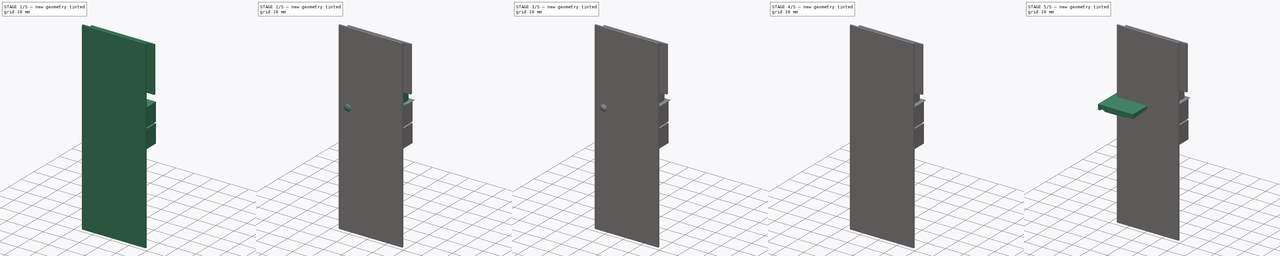
[diagram: build sequence overview — one tinted view per stage of 5, left to right]
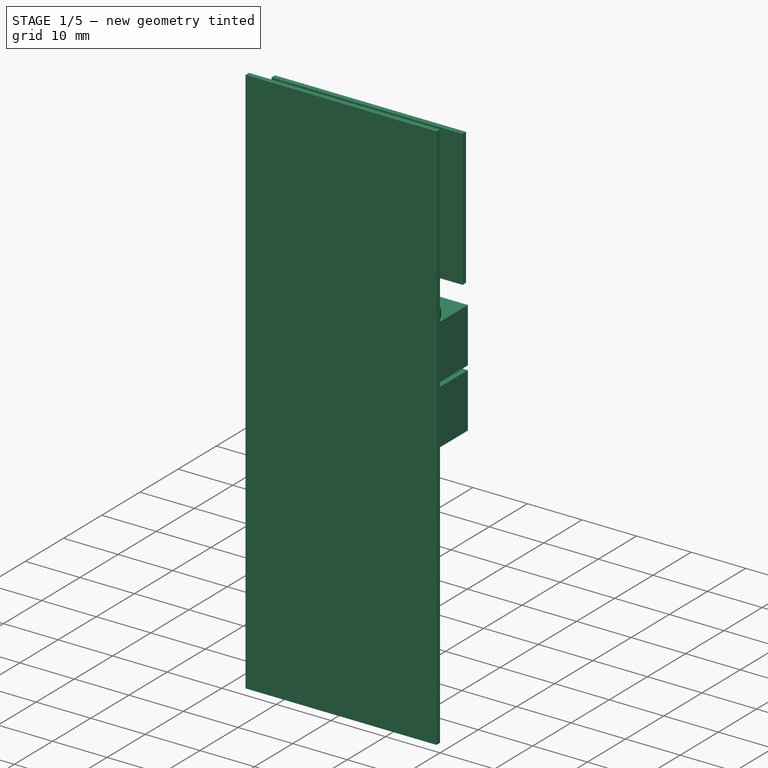
[diagram: stage 1 of 5 — iso view after this stage's code; geometry added in this stage tinted green]
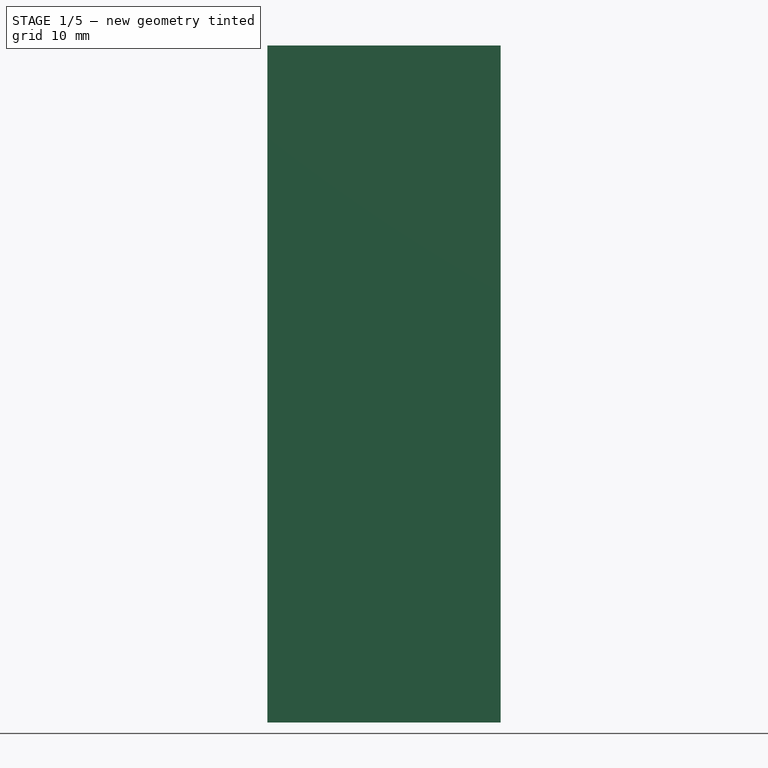
[diagram: stage 1 of 5 — front view after this stage's code; geometry added in this stage tinted green]
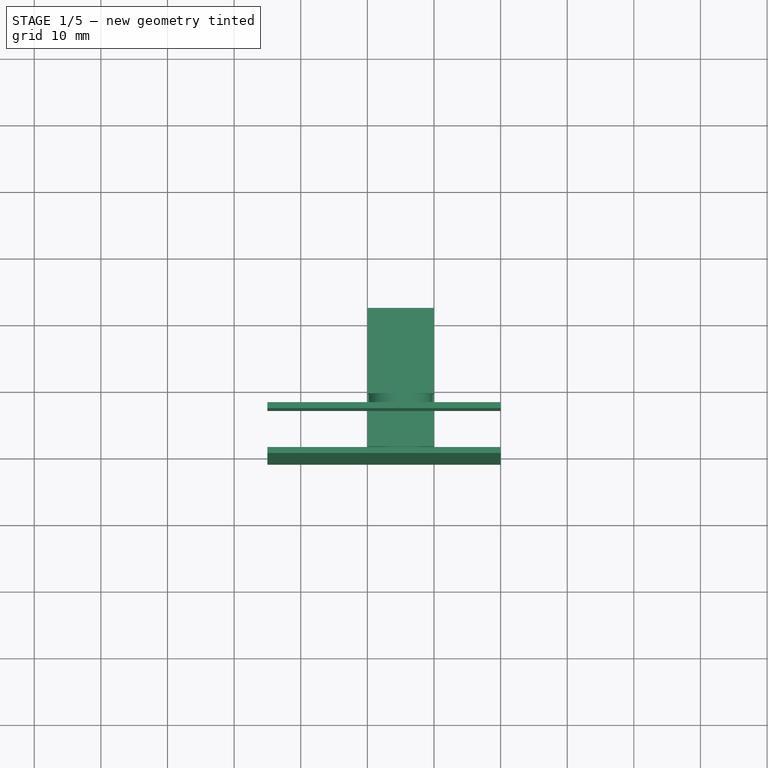
[diagram: stage 1 of 5 — top view after this stage's code; geometry added in this stage tinted green]
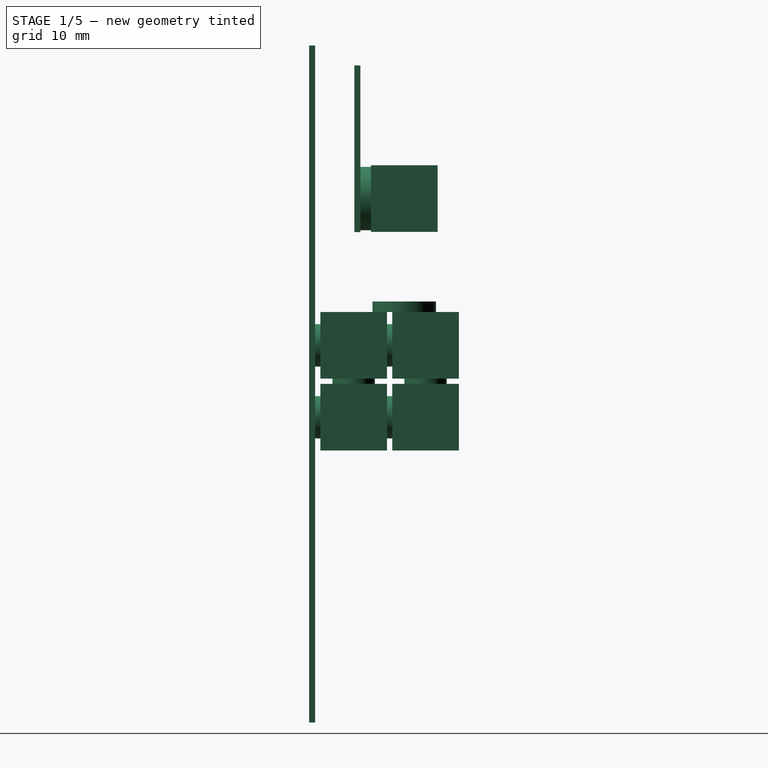
[diagram: stage 1 of 5 — right view after this stage's code; geometry added in this stage tinted green]
FCSTD DOCUMENT  (FreeCAD 1.1R20260223 (Git shallow))
Label: PhaseI
License: All rights reserved
LicenseURL: https://en.wikipedia.org/wiki/All_rights_reserved
objects: Part::Box×66, Part::Cylinder×30, Part::Cut×24, App::DocumentObjectGroup×14, Sketcher::SketchObject×3, Part::Sphere×3, PartDesign::Pocket×2, App::Point×1, PartDesign::Pad×1, PartDesign::Body×1
note: 139 computed .brp shape members not serialized (recipe doc carries the construction recipe); baked Part::Feature solids carry a one-line shape summary decoded from their .brp

FEATURE [Part::Cylinder] Cylinder136  label="KJ_D61SH004"
  Angle = 360
  AttacherType = Attacher::AttachEngine3D
  FirstAngle = 0
  Height = 1.59
  Placement = pos=(15,13.38,0) rot=(0,0,1;0rad)
  Radius = 4.76
  SecondAngle = 0
FEATURE [App::DocumentObjectGroup] Group040  label="Stationary Capacitance Probe (Phase I)"
  Group = -> [Cylinder136,Box298,Box297]
FEATURE [Part::Box] Box299  label="Steel Cube004"
  AttacherType = Attacher::AttachEngine3D
  Height = 10
  Length = 10
  Placement = pos=(10,8.38,22.04) rot=(1,0,0;4.71239rad)
  Width = 10
FEATURE [Part::Cylinder] Cylinder137  label="KJ_D61SH005"
  Angle = 360
  AttacherType = Attacher::AttachEngine3D
  FirstAngle = 0
  Height = 1.59
  Placement = pos=(15,6.79,17.04) rot=(1,0,0;4.71239rad)
  Radius = 4.76
  SecondAngle = 0
FEATURE [App::DocumentObjectGroup] Group041  label="Moving Capacitance Probe (Phase I)"
  Group = -> [Cylinder137,Box299]
FEATURE [Part::Box] Box  label="Nickel Shim"
  AttacherType = Attacher::AttachEngine3D
  Height = 0.15
  Length = 35
  Placement = pos=(-5,5.89,37) rot=(1,0,0;-1.5708rad)
  Width = 25
FEATURE [Part::Box] Box300  label="Nickel Shim001"
  AttacherType = Attacher::AttachEngine3D
  Height = 0.15
  Length = 35
  Placement = pos=(-5,6.04,37) rot=(1,0,0;-1.5708rad)
  Width = 25
FEATURE [Part::Box] Box301  label="Nickel Shim002"
  AttacherType = Attacher::AttachEngine3D
  Height = 0.15
  Length = 35
  Placement = pos=(-5,6.19,37) rot=(1,0,0;-1.5708rad)
  Width = 25
FEATURE [Part::Box] Box302  label="Nickel Shim003"
  AttacherType = Attacher::AttachEngine3D
  Height = 0.15
  Length = 35
  Placement = pos=(-5,6.34,37) rot=(1,0,0;-1.5708rad)
  Width = 25
FEATURE [Part::Box] Box303  label="Nickel Shim004"
  AttacherType = Attacher::AttachEngine3D
  Height = 0.15
  Length = 35
  Placement = pos=(-5,6.49,37) rot=(1,0,0;-1.5708rad)
  Width = 25
FEATURE [Part::Box] Box304  label="Nickel Shim005"
  AttacherType = Attacher::AttachEngine3D
  Height = 0.15
  Length = 35
  Placement = pos=(-5,6.64,37) rot=(1,0,0;-1.5708rad)
  Width = 25
FEATURE [App::DocumentObjectGroup] Group  label="Improvised Slider"
  Group = -> [Box,Box300,Box302,Box303,Box304,Box301]
FEATURE [Part::Cylinder] Cylinder138  label="KJ_D401_021"
  Angle = 360
  AttacherType = Attacher::AttachEngine3D
  FirstAngle = 0
  Height = 0.79
  Placement = pos=(15,0,-5) rot=(0,0.707107,0.707107;3.14159rad)
  Radius = 3.18
  SecondAngle = 0
FEATURE [Part::Box] Box305  label="Iron Cube"
  AttacherType = Attacher::AttachEngine3D
  Height = 10
  Length = 10
  Placement = pos=(10,0.79,0) rot=(1,0,0;4.71239rad)
  Width = 10
FEATURE [Part::Cylinder] Cylinder139  label="KJ_D401_022"
  Angle = 360
  AttacherType = Attacher::AttachEngine3D
  FirstAngle = 0
  Height = 0.79
  Placement = pos=(15,10.79,-5) rot=(0,0.707107,0.707107;3.14159rad)
  Radius = 3.18
  SecondAngle = 0
FEATURE [Part::Box] Box306  label="Iron Cube001"
  AttacherType = Attacher::AttachEngine3D
  Height = 10
  Length = 10
  Placement = pos=(10,11.58,0) rot=(1,0,0;4.71239rad)
  Width = 10
FEATURE [Part::Cylinder] Cylinder140  label="KJ_D401_023"
  Angle = 360
  AttacherType = Attacher::AttachEngine3D
  FirstAngle = 0
  Height = 0.79
  Placement = pos=(15,0,-15.79) rot=(0,0.707107,0.707107;3.14159rad)
  Radius = 3.18
  SecondAngle = 0
FEATURE [Part::Box] Box307  label="Iron Cube002"
  AttacherType = Attacher::AttachEngine3D
  Height = 10
  Length = 10
  Placement = pos=(10,0.79,-10.79) rot=(1,0,0;4.71239rad)
  Width = 10
FEATURE [Part::Cylinder] Cylinder141  label="KJ_D401_024"
  Angle = 360
  AttacherType = Attacher::AttachEngine3D
  FirstAngle = 0
  Height = 0.79
  Placement = pos=(15,10.79,-15.79) rot=(0,0.707107,0.707107;3.14159rad)
  Radius = 3.18
  SecondAngle = 0
FEATURE [Part::Box] Box308  label="Iron Cube003"
  AttacherType = Attacher::AttachEngine3D
  Height = 10
  Length = 10
  Placement = pos=(10,11.58,-10.79) rot=(1,0,0;4.71239rad)
  Width = 10
FEATURE [Part::Cylinder] Cylinder142  label="KJ_D401_025"
  Angle = 360
  AttacherType = Attacher::AttachEngine3D
  FirstAngle = 0
  Height = 0.79
  Placement = pos=(15,5.79,-10.79) rot=(0,0,1;0rad)
  Radius = 3.18
  SecondAngle = 0
FEATURE [Part::Cylinder] Cylinder143  label="KJ_D401_026"
  Angle = 360
  AttacherType = Attacher::AttachEngine3D
  FirstAngle = 0
  Height = 0.79
  Placement = pos=(15,16.58,-10.79) rot=(0,0,1;0rad)
  Radius = 3.18
  SecondAngle = 0
FEATURE [App::DocumentObjectGroup] Group042  label="Improvised STM Base"
  Group = -> [Cylinder138,Box305,Cylinder139,Box306,Cylinder140,Box307,Cylinder141,Box308,Cylinder142,Cylinder143]
FEATURE [Part::Box] Box309  label="Nickel Shim006"
  AttacherType = Attacher::AttachEngine3D
  Height = 0.15
  Length = 35
  Placement = pos=(-5,-0.15,40) rot=(1,0,0;-1.5708rad)
  Width = 101.6
FEATURE [Part::Box] Box310  label="Nickel Shim007"
  AttacherType = Attacher::AttachEngine3D
  Height = 0.15
  Length = 35
  Placement = pos=(-5,-0.3,40) rot=(1,0,0;-1.5708rad)
  Width = 101.6
FEATURE [Part::Box] Box311  label="Nickel Shim008"
  AttacherType = Attacher::AttachEngine3D
  Height = 0.15
  Length = 35
  Placement = pos=(-5,-0.45,40) rot=(1,0,0;-1.5708rad)
  Width = 101.6
FEATURE [Part::Box] Box312  label="Nickel Shim009"
  AttacherType = Attacher::AttachEngine3D
  Height = 0.15
  Length = 35
  Placement = pos=(-5,-0.6,40) rot=(1,0,0;-1.5708rad)
  Width = 101.6
FEATURE [Part::Box] Box313  label="Nickel Shim010"
  AttacherType = Attacher::AttachEngine3D
  Height = 0.15
  Length = 35
  Placement = pos=(-5,-0.75,40) rot=(1,0,0;-1.5708rad)
  Width = 101.6
FEATURE [Part::Box] Box314  label="Nickel Shim011"
  AttacherType = Attacher::AttachEngine3D
  Height = 0.15
  Length = 35
  Placement = pos=(-5,-0.9,40) rot=(1,0,0;-1.5708rad)
  Width = 101.6
FEATURE [App::DocumentObjectGroup] Group043  label="Improvised Underplate"
  Group = -> [Box309,Box310,Box311,Box312,Box313,Box314]
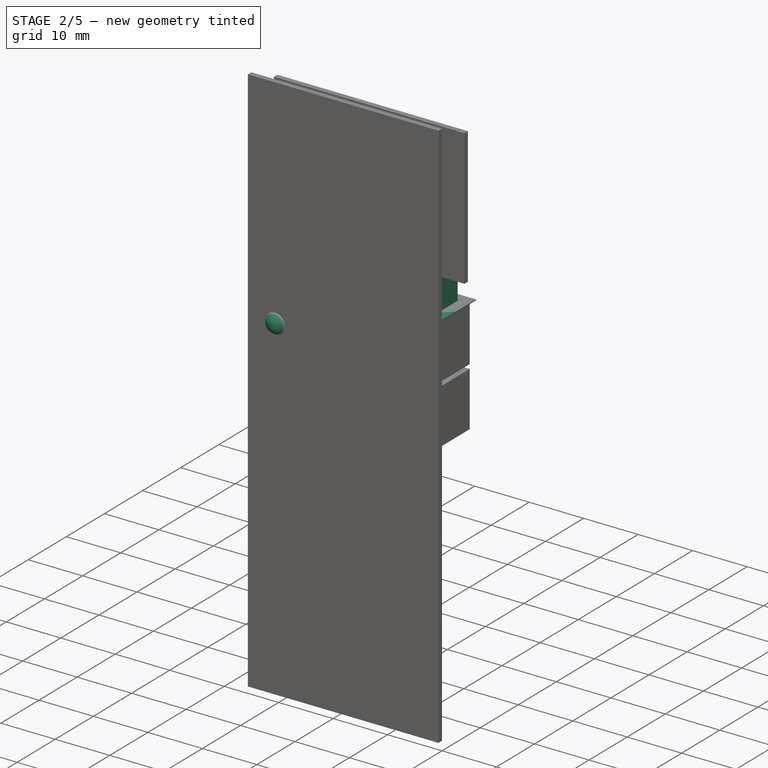
[diagram: stage 2 of 5 — iso view after this stage's code; geometry added in this stage tinted green]
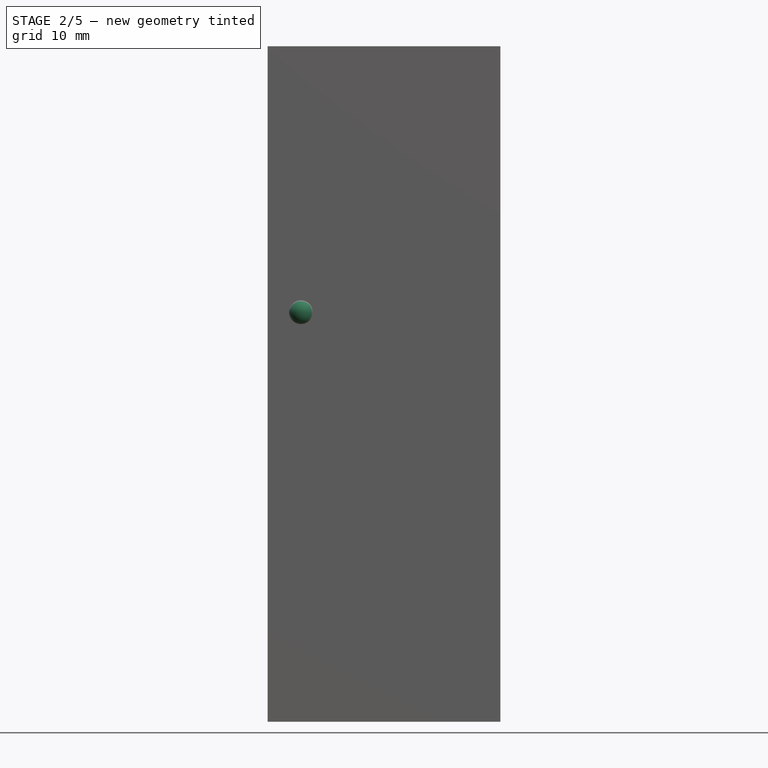
[diagram: stage 2 of 5 — front view after this stage's code; geometry added in this stage tinted green]
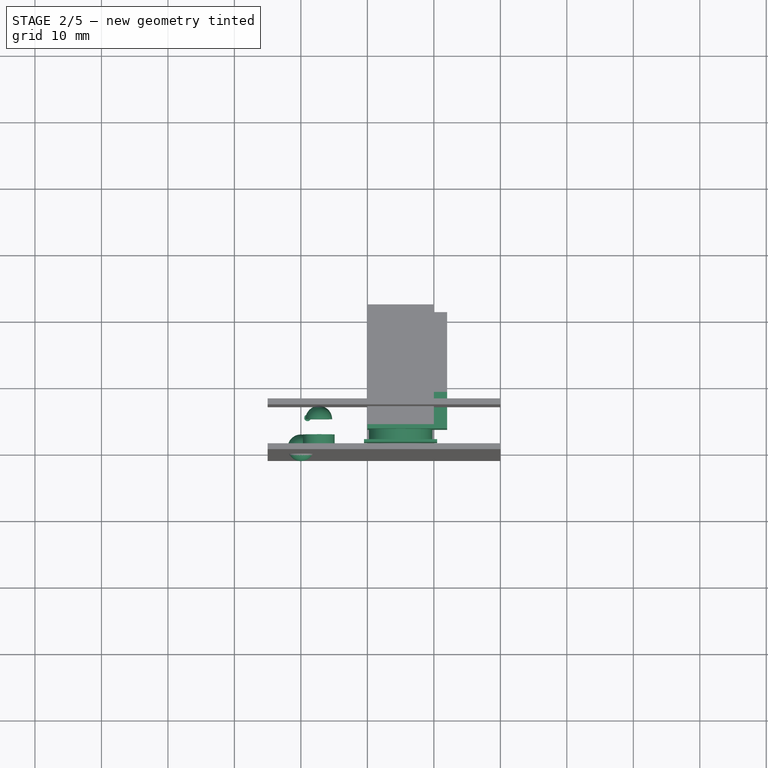
[diagram: stage 2 of 5 — top view after this stage's code; geometry added in this stage tinted green]
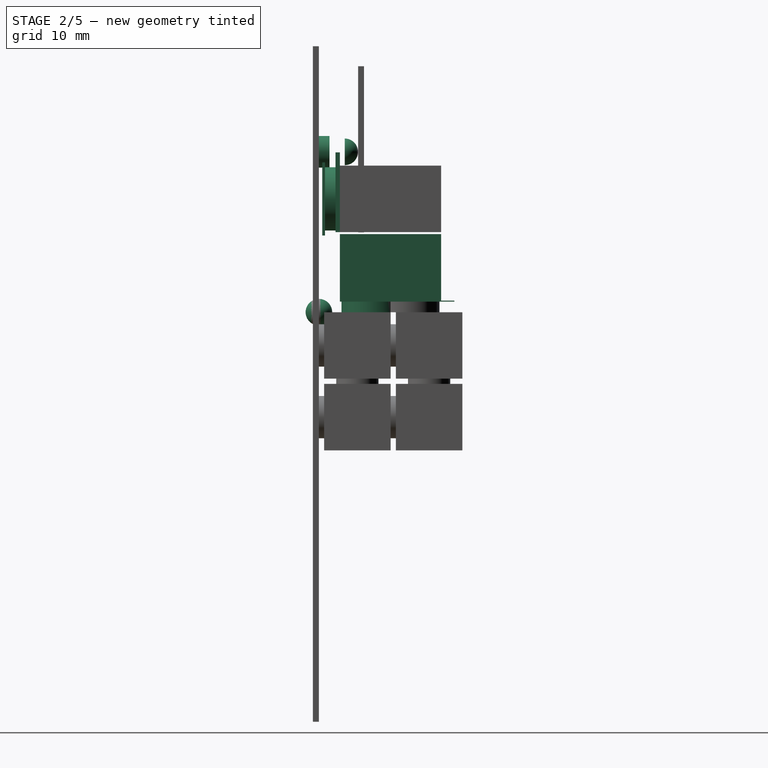
[diagram: stage 2 of 5 — right view after this stage's code; geometry added in this stage tinted green]
FEATURE [Part::Box] Box284  label="Cube024"
  AttacherType = Attacher::AttachEngine3D
  Height = 10
  Length = 10
  Placement = pos=(-5,-5,-10) rot=(0,0,1;0rad)
  Width = 10
FEATURE [Part::Cylinder] Cylinder128  label="KJ_D31SH016"
  Angle = 360
  AttacherType = Attacher::AttachEngine3D
  FirstAngle = 0
  Height = 1.59
  Placement = pos=(2.7,3.6e-15,24.12) rot=(0.198716,-0.693005,-0.693005;3.53391rad)
  Radius = 2.38
  SecondAngle = 0
FEATURE [Part::Cylinder] Cylinder129
  Angle = 360
  AttacherType = Attacher::AttachEngine3D
  FirstAngle = 0
  Height = 0.01
  Placement = pos=(1,4.5,0.49) rot=(0,0,1;0rad)
  Radius = 0.5
  SecondAngle = 0
FEATURE [Part::Cylinder] Cylinder130
  Angle = 360
  AttacherType = Attacher::AttachEngine3D
  FirstAngle = 0
  Height = 0.01
  Placement = pos=(1,4.5,0.49) rot=(0,0,1;0rad)
  Radius = 0.5
  SecondAngle = 0
FEATURE [Part::Cylinder] Cylinder131
  Angle = 360
  AttacherType = Attacher::AttachEngine3D
  FirstAngle = 0
  Height = 0.01
  Placement = pos=(1,4.5,0.49) rot=(0,0,1;0rad)
  Radius = 0.5
  SecondAngle = 0
FEATURE [Part::Cylinder] Cylinder132
  Angle = 360
  AttacherType = Attacher::AttachEngine3D
  FirstAngle = 0
  Height = 0.01
  Placement = pos=(1,4.5,0.49) rot=(0,0,1;0rad)
  Radius = 0.5
  SecondAngle = 0
FEATURE [App::DocumentObjectGroup] Group031  label="Magnet Stack004"
  Group = -> [Box248,Cylinder114,Box249,Cylinder115,Box250,Cylinder116,Box251,Cylinder117]
FEATURE [Part::Sphere] Sphere018
  Angle1 = -90
  Angle2 = 90
  Angle3 = 360
  AttacherType = Attacher::AttachEngine3D
  Radius = 2
FEATURE [App::DocumentObjectGroup] Group032  label="Coarse Piezo Stack, Rotated013"
  Group = -> [Cylinder118,Cut132,Cut131,Cut134,Cut133,Cut135,Cut136,Cut137,Cut138]
FEATURE [Part::Sphere] Sphere019
  Angle1 = -90
  Angle2 = 90
  Angle3 = 360
  AttacherType = Attacher::AttachEngine3D
  Radius = 2
FEATURE [App::DocumentObjectGroup] Group033  label="Coarse Piezo Stack, Rotated014"
  Group = -> [Cylinder123,Cut140,Cut139,Cut142,Cut141,Cut143,Cut144,Cut145,Cut146]
FEATURE [Part::Sphere] Sphere020
  Angle1 = -90
  Angle2 = 90
  Angle3 = 360
  AttacherType = Attacher::AttachEngine3D
  Radius = 2
FEATURE [Part::Cut] Cut154  label="Sapphire Half-Ball Lens020"
  Base = -> Sphere020
  Placement = pos=(2.7,3.89,24.12) rot=(0.198716,-0.693005,-0.693005;3.53391rad)
  Refine = true
  Tool = -> Box284
FEATURE [App::DocumentObjectGroup] Group034  label="Coarse Piezo Stack, Rotated015"
  Group = -> [Cylinder128,Cut148,Cut147,Cut150,Cut149,Cut151,Cut152,Cut153,Cut154]
FEATURE [App::DocumentObjectGroup] Group035  label="Coarse Z Piezo Tripod (Phase I)"
  Group = -> [Group032,Group033,Group034,Group031]
FEATURE [Part::Box] Box287  label="Copper Shim"
  AttacherType = Attacher::AttachEngine3D
  Height = 0.41
  Length = 5.5
  Placement = pos=(12.25,0.5,19.79) rot=(1,0,0;4.71239rad)
  Width = 5.5
FEATURE [Part::Cylinder] Cylinder133  label="KJ_D31SH017"
  Angle = 360
  AttacherType = Attacher::AttachEngine3D
  FirstAngle = 0
  Height = 1.59
  Placement = pos=(15,0.91,17.04) rot=(1,0,0;4.71239rad)
  Radius = 2.38
  SecondAngle = 0
FEATURE [Part::Box] Box288  label="Copper Shim001"
  AttacherType = Attacher::AttachEngine3D
  Height = 0.05
  Length = 12
  Placement = pos=(10,2.5,12.04) rot=(-0.57735,-0.57735,-0.57735;2.0944rad)
  Width = 12
FEATURE [Part::Box] Box289  label="Glass Cover Slip002"
  AttacherType = Attacher::AttachEngine3D
  Height = 0.15
  Length = 12
  Placement = pos=(10,2.55,12.04) rot=(-0.57735,-0.57735,-0.57735;2.0944rad)
  Width = 12
FEATURE [Part::Box] Box290  label="Glass Cover Slip003"
  AttacherType = Attacher::AttachEngine3D
  Height = 0.15
  Length = 12
  Placement = pos=(10,2.7,12.04) rot=(-0.57735,-0.57735,-0.57735;2.0944rad)
  Width = 12
FEATURE [Part::Box] Box291  label="Glass Cover Slip004"
  AttacherType = Attacher::AttachEngine3D
  Height = 0.15
  Length = 12
  Placement = pos=(10,2.85,12.04) rot=(-0.57735,-0.57735,-0.57735;2.0944rad)
  Width = 12
FEATURE [Part::Box] Box292  label="Glass Cover Slip005"
  AttacherType = Attacher::AttachEngine3D
  Height = 0.15
  Length = 12
  Placement = pos=(10,3,12.04) rot=(-0.57735,-0.57735,-0.57735;2.0944rad)
  Width = 12
FEATURE [Part::Box] Box293  label="Steel Cube001"
  AttacherType = Attacher::AttachEngine3D
  Height = 10
  Length = 10
  Placement = pos=(10,3.15,12.04) rot=(-0.57735,-0.57735,-0.57735;2.0944rad)
  Width = 10
FEATURE [App::DocumentObjectGroup] Group036  label="Moving Capacitance Probe (Phase 0.2)"
  Group = -> [Box289,Box290,Box291,Box292,Box293,Box288]
FEATURE [App::DocumentObjectGroup] Group037  label="Capacitance Probe Extender, Small (Phase 0.2)"
  Group = -> [Box287,Cylinder133]
FEATURE [Part::Box] Box294  label="Copper Shim002"
  AttacherType = Attacher::AttachEngine3D
  Height = 0.41
  Length = 11
  Placement = pos=(9.5,0.5,22.54) rot=(1,0,0;4.71239rad)
  Width = 11
FEATURE [Part::Cylinder] Cylinder134  label="KJ_D61SH002"
  Angle = 360
  AttacherType = Attacher::AttachEngine3D
  FirstAngle = 0
  Height = 1.59
  Placement = pos=(15,0.91,17.04) rot=(1,0,0;4.71239rad)
  Radius = 4.76
  SecondAngle = 0
FEATURE [App::DocumentObjectGroup] Group038  label="Capacitance Probe Extender, Large (Phase 0.2)"
  Group = -> [Box294,Cylinder134]
FEATURE [Part::Cylinder] Cylinder135  label="KJ_D61SH003"
  Angle = 360
  AttacherType = Attacher::AttachEngine3D
  FirstAngle = 0
  Height = 1.59
  Placement = pos=(15,8.15,0) rot=(0,0,1;0rad)
  Radius = 4.76
  SecondAngle = 0
FEATURE [Part::Box] Box295  label="Copper Cube"
  AttacherType = Attacher::AttachEngine3D
  Height = 10
  Length = 10
  Placement = pos=(10,3.15,1.74) rot=(0,0,1;0rad)
  Width = 10
FEATURE [Part::Box] Box296  label="Glass Cover Slip006"
  AttacherType = Attacher::AttachEngine3D
  Height = 0.15
  Length = 12
  Placement = pos=(10,3.15,1.59) rot=(0,0,1;0rad)
  Width = 12
FEATURE [App::DocumentObjectGroup] Group039  label="Stationary Capacitance Probe (Phase 0.2)"
  Group = -> [Cylinder135,Box296,Box295]
FEATURE [Part::Box] Box297  label="Copper Cube001"
  AttacherType = Attacher::AttachEngine3D
  Height = 10
  Length = 10
  Placement = pos=(10,8.38,1.74) rot=(0,0,1;0rad)
  Width = 10
FEATURE [Part::Box] Box298  label="Glass Cover Slip007"
  AttacherType = Attacher::AttachEngine3D
  Height = 0.15
  Length = 12
  Placement = pos=(10,8.38,1.59) rot=(0,0,1;0rad)
  Width = 12
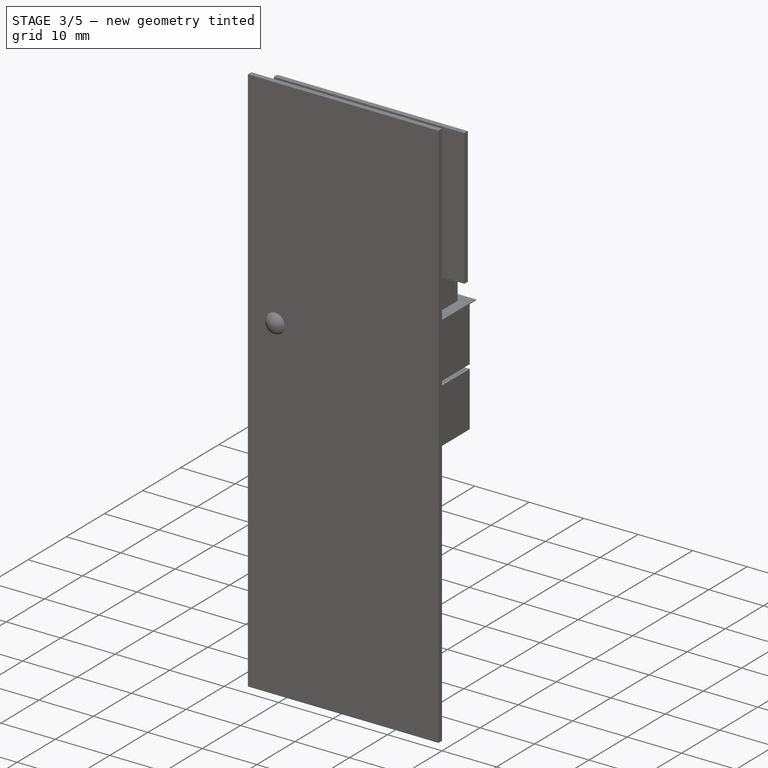
[diagram: stage 3 of 5 — iso view after this stage's code; geometry added in this stage tinted green]
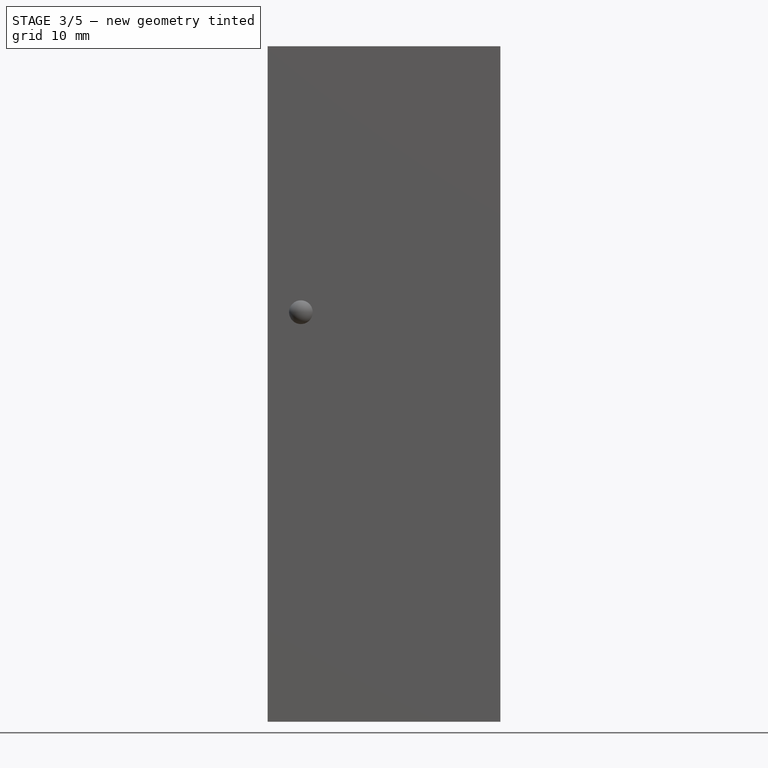
[diagram: stage 3 of 5 — front view after this stage's code; geometry added in this stage tinted green]
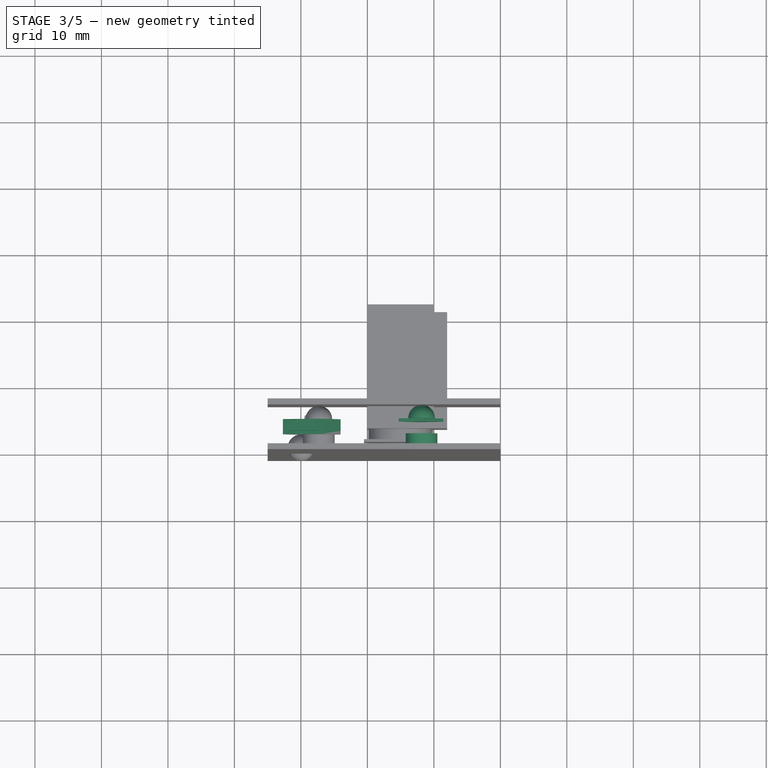
[diagram: stage 3 of 5 — top view after this stage's code; geometry added in this stage tinted green]
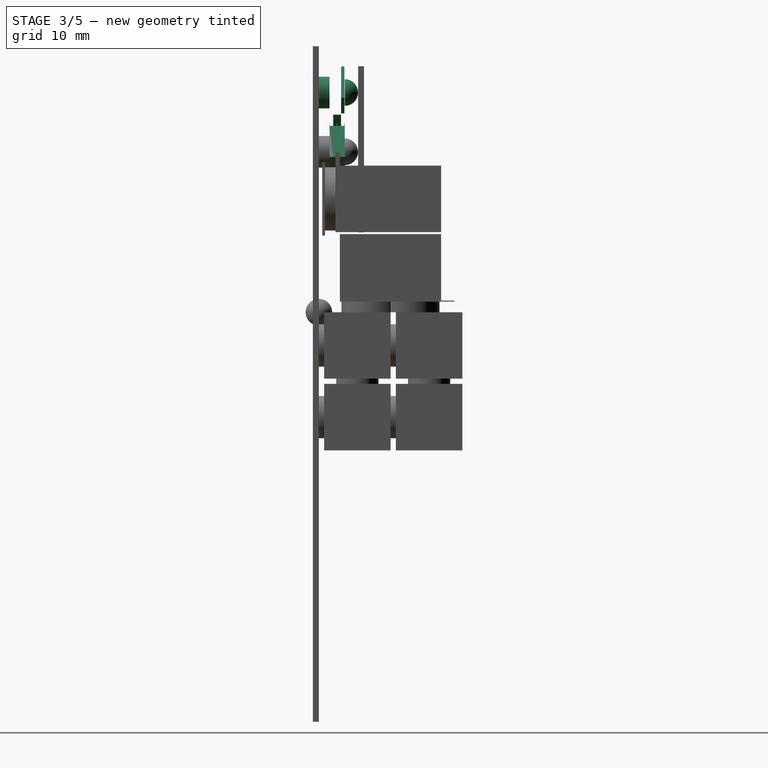
[diagram: stage 3 of 5 — right view after this stage's code; geometry added in this stage tinted green]
FEATURE [Part::Box] Box272  label="Small LiNbO3 Plate131"
  AttacherType = Attacher::AttachEngine3D
  Height = 0.5
  Length = 4.5
  Width = 5.5
FEATURE [Part::Box] Box273  label="Cube023"
  AttacherType = Attacher::AttachEngine3D
  Height = 10
  Length = 10
  Placement = pos=(-5,-5,-10) rot=(0,0,1;0rad)
  Width = 10
FEATURE [Part::Box] Box274  label="Small LiNbO3 Plate132"
  AttacherType = Attacher::AttachEngine3D
  Height = 0.5
  Length = 4.5
  Width = 5.5
FEATURE [Part::Box] Box275  label="Small Cu GND Electrode117"
  AttacherType = Attacher::AttachEngine3D
  Height = 1.15
  Length = 6
  Width = 6.5
FEATURE [Part::Box] Box276  label="Small Cu GND Electrode118"
  AttacherType = Attacher::AttachEngine3D
  Height = 1.05
  Length = 6
  Placement = pos=(0,0,0.05) rot=(0,0,1;0rad)
  Width = 6.45
FEATURE [Part::Box] Box277  label="Small LiNbO3 Plate133"
  AttacherType = Attacher::AttachEngine3D
  Height = 0.5
  Length = 4.5
  Width = 5.5
FEATURE [Part::Box] Box278  label="Small Cu GND Electrode119"
  AttacherType = Attacher::AttachEngine3D
  Height = 1.2
  Length = 5
  Width = 7.5
FEATURE [Part::Box] Box279  label="Small Cu GND Electrode120"
  AttacherType = Attacher::AttachEngine3D
  Height = 1.1
  Length = 5
  Placement = pos=(0,0,0.05) rot=(0,0,1;0rad)
  Width = 7.45
FEATURE [Part::Box] Box280  label="Small Cu GND Electrode121"
  AttacherType = Attacher::AttachEngine3D
  Height = 1.15
  Length = 6
  Width = 6.5
FEATURE [Part::Box] Box281  label="Small Cu GND Electrode122"
  AttacherType = Attacher::AttachEngine3D
  Height = 1.05
  Length = 6
  Placement = pos=(0,0,0.05) rot=(0,0,1;0rad)
  Width = 6.45
FEATURE [Part::Box] Box282  label="Small LiNbO3 Plate134"
  AttacherType = Attacher::AttachEngine3D
  Height = 0.5
  Length = 4.5
  Width = 5.5
FEATURE [Part::Box] Box283  label="Small LiNbO3 Plate135"
  AttacherType = Attacher::AttachEngine3D
  Height = 0.5
  Length = 4.5
  Width = 5.5
FEATURE [Part::Cut] Cut148  label="Small Cu Electrode, Short Axis, GND016"
  Base = -> Box275
  Placement = pos=(2.80005,1.59,28.4511) rot=(-0.787007,0.436245,0.436245;1.80806rad)
  Refine = true
  Tool = -> Box276
FEATURE [Part::Cut] Cut150  label="Small Cu Electrode001, Long Axis, V016"
  Base = -> Box278
  Placement = pos=(5.97956,2.14,23.3629) rot=(0.198716,-0.693005,-0.693005;3.53391rad)
  Refine = true
  Tool = -> Box279
FEATURE [Part::Cut] Cut151  label="Small Cu Electrode002, Short Axis, GND016"
  Base = -> Box280
  Placement = pos=(2.80005,2.74,28.4511) rot=(-0.787007,0.436245,0.436245;1.80806rad)
  Refine = true
  Tool = -> Box281
FEATURE [Part::Cylinder] Cylinder123  label="KJ_D31SH015"
  Angle = 360
  AttacherType = Attacher::AttachEngine3D
  FirstAngle = 0
  Height = 1.59
  Placement = pos=(18.15,1.8e-15,33.04) rot=(0.198716,-0.693005,-0.693005;3.53391rad)
  Radius = 2.38
  SecondAngle = 0
FEATURE [Part::Cylinder] Cylinder124
  Angle = 360
  AttacherType = Attacher::AttachEngine3D
  FirstAngle = 0
  Height = 0.01
  Placement = pos=(1,4.5,0.49) rot=(0,0,1;0rad)
  Radius = 0.5
  SecondAngle = 0
FEATURE [Part::Cylinder] Cylinder125
  Angle = 360
  AttacherType = Attacher::AttachEngine3D
  FirstAngle = 0
  Height = 0.01
  Placement = pos=(1,4.5,0.49) rot=(0,0,1;0rad)
  Radius = 0.5
  SecondAngle = 0
FEATURE [Part::Cylinder] Cylinder126
  Angle = 360
  AttacherType = Attacher::AttachEngine3D
  FirstAngle = 0
  Height = 0.01
  Placement = pos=(1,4.5,0.49) rot=(0,0,1;0rad)
  Radius = 0.5
  SecondAngle = 0
FEATURE [Part::Cylinder] Cylinder127
  Angle = 360
  AttacherType = Attacher::AttachEngine3D
  FirstAngle = 0
  Height = 0.01
  Placement = pos=(1,4.5,0.49) rot=(0,0,1;0rad)
  Radius = 0.5
  SecondAngle = 0
FEATURE [Part::Cut] Cut145  label="Small LiNbO3 Plate143"
  Base = -> Box272
  Placement = pos=(14.6988,3.34,34.5625) rot=(-0.926703,-0.265728,-0.265728;1.64685rad)
  Refine = true
  Tool = -> Cylinder127
FEATURE [Part::Cut] Cut147  label="Small LiNbO3 Plate144"
  Base = -> Box274
  Placement = pos=(5.97956,1.64,23.3629) rot=(0.198716,-0.693005,-0.693005;3.53391rad)
  Refine = true
  Tool = -> Cylinder129
FEATURE [Part::Cut] Cut149  label="Small LiNbO3 Plate145"
  Base = -> Box277
  Placement = pos=(-0.75121,2.19,25.6425) rot=(-0.926703,-0.265728,-0.265728;1.64685rad)
  Refine = true
  Tool = -> Cylinder130
FEATURE [Part::Cut] Cut152  label="Small LiNbO3 Plate146"
  Base = -> Box282
  Placement = pos=(5.97956,2.79,23.3629) rot=(0.198716,-0.693005,-0.693005;3.53391rad)
  Refine = true
  Tool = -> Cylinder131
FEATURE [Part::Cut] Cut153  label="Small LiNbO3 Plate147"
  Base = -> Box283
  Placement = pos=(-0.75121,3.34,25.6425) rot=(-0.926703,-0.265728,-0.265728;1.64685rad)
  Refine = true
  Tool = -> Cylinder132
FEATURE [Part::Cut] Cut146  label="Sapphire Half-Ball Lens019"
  Base = -> Sphere019
  Placement = pos=(18.15,3.89,33.04) rot=(0.198716,-0.693005,-0.693005;3.53391rad)
  Refine = true
  Tool = -> Box273
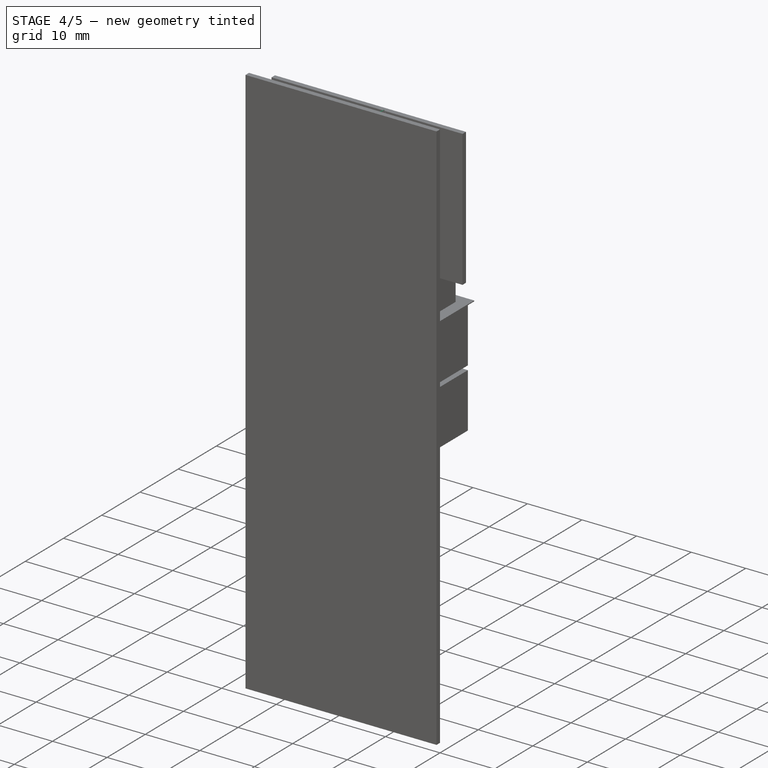
[diagram: stage 4 of 5 — iso view after this stage's code; geometry added in this stage tinted green]
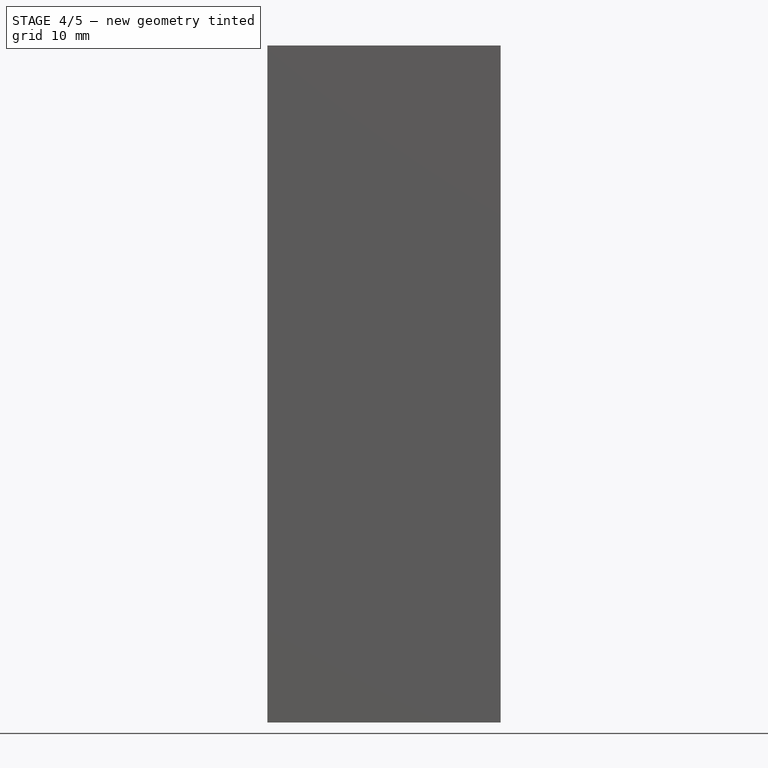
[diagram: stage 4 of 5 — front view after this stage's code; geometry added in this stage tinted green]
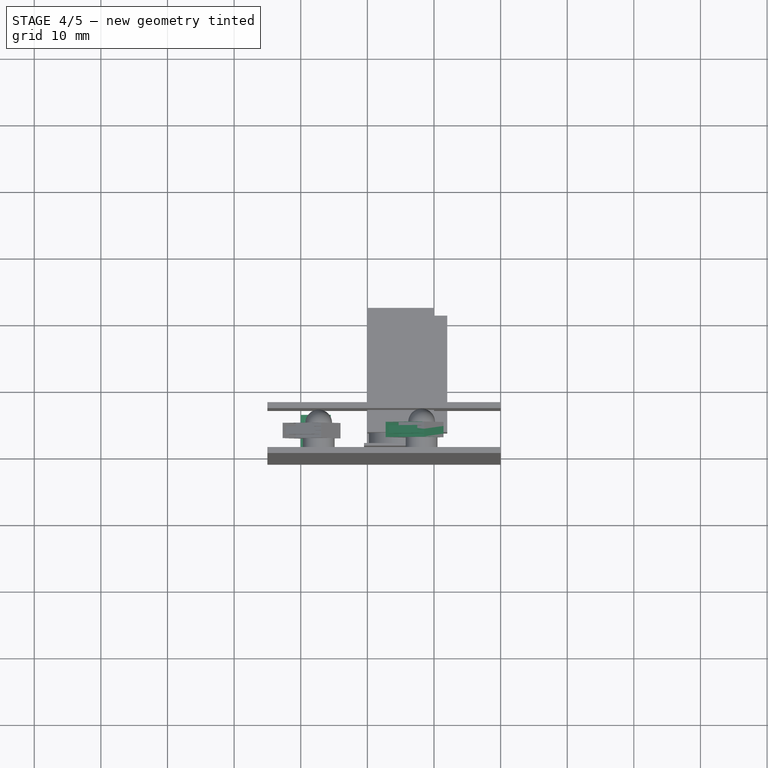
[diagram: stage 4 of 5 — top view after this stage's code; geometry added in this stage tinted green]
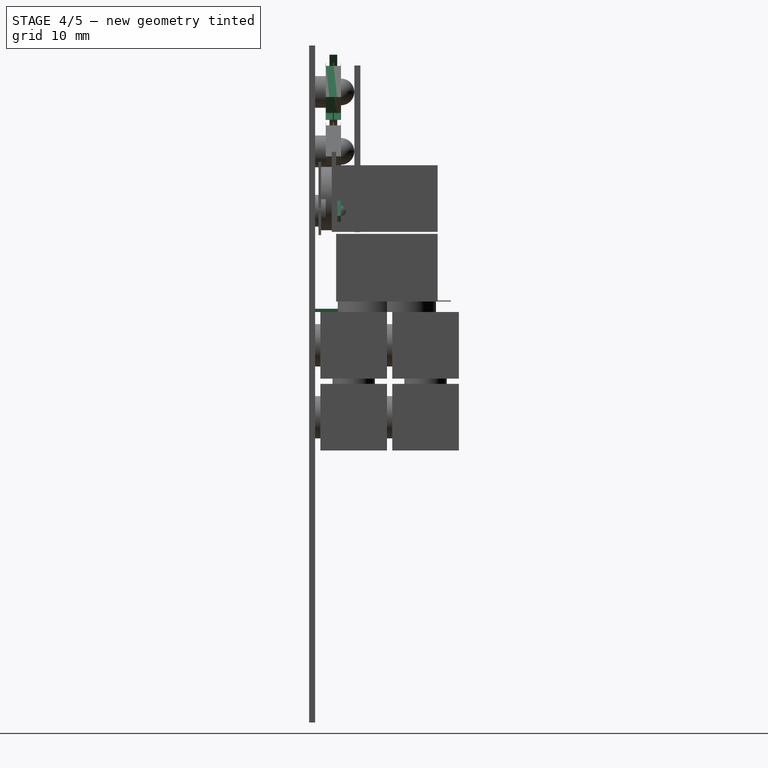
[diagram: stage 4 of 5 — right view after this stage's code; geometry added in this stage tinted green]
FEATURE [Part::Box] Box260  label="Small LiNbO3 Plate126"
  AttacherType = Attacher::AttachEngine3D
  Height = 0.5
  Length = 4.5
  Width = 5.5
FEATURE [Part::Box] Box261  label="Small LiNbO3 Plate127"
  AttacherType = Attacher::AttachEngine3D
  Height = 0.5
  Length = 4.5
  Width = 5.5
FEATURE [Part::Box] Box262  label="Cube022"
  AttacherType = Attacher::AttachEngine3D
  Height = 10
  Length = 10
  Placement = pos=(-5,-5,-10) rot=(0,0,1;0rad)
  Width = 10
FEATURE [Part::Box] Box263  label="Small LiNbO3 Plate128"
  AttacherType = Attacher::AttachEngine3D
  Height = 0.5
  Length = 4.5
  Width = 5.5
FEATURE [Part::Box] Box264  label="Small Cu GND Electrode111"
  AttacherType = Attacher::AttachEngine3D
  Height = 1.15
  Length = 6
  Width = 6.5
FEATURE [Part::Box] Box265  label="Small Cu GND Electrode112"
  AttacherType = Attacher::AttachEngine3D
  Height = 1.05
  Length = 6
  Placement = pos=(0,0,0.05) rot=(0,0,1;0rad)
  Width = 6.45
FEATURE [Part::Box] Box266  label="Small LiNbO3 Plate129"
  AttacherType = Attacher::AttachEngine3D
  Height = 0.5
  Length = 4.5
  Width = 5.5
FEATURE [Part::Box] Box267  label="Small Cu GND Electrode113"
  AttacherType = Attacher::AttachEngine3D
  Height = 1.2
  Length = 5
  Width = 7.5
FEATURE [Part::Box] Box268  label="Small Cu GND Electrode114"
  AttacherType = Attacher::AttachEngine3D
  Height = 1.1
  Length = 5
  Placement = pos=(0,0,0.05) rot=(0,0,1;0rad)
  Width = 7.45
FEATURE [Part::Box] Box269  label="Small Cu GND Electrode115"
  AttacherType = Attacher::AttachEngine3D
  Height = 1.15
  Length = 6
  Width = 6.5
FEATURE [Part::Box] Box270  label="Small Cu GND Electrode116"
  AttacherType = Attacher::AttachEngine3D
  Height = 1.05
  Length = 6
  Placement = pos=(0,0,0.05) rot=(0,0,1;0rad)
  Width = 6.45
FEATURE [Part::Box] Box271  label="Small LiNbO3 Plate130"
  AttacherType = Attacher::AttachEngine3D
  Height = 0.5
  Length = 4.5
  Width = 5.5
FEATURE [Part::Cut] Cut140  label="Small Cu Electrode, Short Axis, GND015"
  Base = -> Box264
  Placement = pos=(18.25,1.59,37.3711) rot=(-0.787007,0.436245,0.436245;1.80806rad)
  Refine = true
  Tool = -> Box265
FEATURE [Part::Cut] Cut142  label="Small Cu Electrode001, Long Axis, V015"
  Base = -> Box267
  Placement = pos=(21.4296,2.14,32.2829) rot=(0.198716,-0.693005,-0.693005;3.53391rad)
  Refine = true
  Tool = -> Box268
FEATURE [Part::Cut] Cut143  label="Small Cu Electrode002, Short Axis, GND015"
  Base = -> Box269
  Placement = pos=(18.25,2.74,37.3711) rot=(-0.787007,0.436245,0.436245;1.80806rad)
  Refine = true
  Tool = -> Box270
FEATURE [Part::Cylinder] Cylinder118  label="KJ_D31SH014"
  Angle = 360
  AttacherType = Attacher::AttachEngine3D
  FirstAngle = 0
  Height = 1.59
  Placement = pos=(18.15,7.1e-15,15.2) rot=(0.198716,-0.693005,-0.693005;3.53391rad)
  Radius = 2.38
  SecondAngle = 0
FEATURE [Part::Cylinder] Cylinder119
  Angle = 360
  AttacherType = Attacher::AttachEngine3D
  FirstAngle = 0
  Height = 0.01
  Placement = pos=(1,4.5,0.49) rot=(0,0,1;0rad)
  Radius = 0.5
  SecondAngle = 0
FEATURE [Part::Cylinder] Cylinder120
  Angle = 360
  AttacherType = Attacher::AttachEngine3D
  FirstAngle = 0
  Height = 0.01
  Placement = pos=(1,4.5,0.49) rot=(0,0,1;0rad)
  Radius = 0.5
  SecondAngle = 0
FEATURE [Part::Cylinder] Cylinder121
  Angle = 360
  AttacherType = Attacher::AttachEngine3D
  FirstAngle = 0
  Height = 0.01
  Placement = pos=(1,4.5,0.49) rot=(0,0,1;0rad)
  Radius = 0.5
  SecondAngle = 0
FEATURE [Part::Cylinder] Cylinder122
  Angle = 360
  AttacherType = Attacher::AttachEngine3D
  FirstAngle = 0
  Height = 0.01
  Placement = pos=(1,4.5,0.49) rot=(0,0,1;0rad)
  Radius = 0.5
  SecondAngle = 0
FEATURE [Part::Cut] Cut137  label="Small LiNbO3 Plate139"
  Base = -> Box261
  Placement = pos=(14.6988,3.34,16.7225) rot=(-0.926703,-0.265728,-0.265728;1.64685rad)
  Refine = true
  Tool = -> Cylinder122
FEATURE [Part::Cut] Cut139  label="Small LiNbO3 Plate140"
  Base = -> Box263
  Placement = pos=(21.4296,1.64,32.2829) rot=(0.198716,-0.693005,-0.693005;3.53391rad)
  Refine = true
  Tool = -> Cylinder124
FEATURE [Part::Cut] Cut141  label="Small LiNbO3 Plate141"
  Base = -> Box266
  Placement = pos=(14.6988,2.19,34.5625) rot=(-0.926703,-0.265728,-0.265728;1.64685rad)
  Refine = true
  Tool = -> Cylinder125
FEATURE [Part::Cut] Cut144  label="Small LiNbO3 Plate142"
  Base = -> Box271
  Placement = pos=(21.4296,2.79,32.2829) rot=(0.198716,-0.693005,-0.693005;3.53391rad)
  Refine = true
  Tool = -> Cylinder126
FEATURE [Part::Cut] Cut138  label="Sapphire Half-Ball Lens018"
  Base = -> Sphere018
  Placement = pos=(18.15,3.89,15.2) rot=(0.198716,-0.693005,-0.693005;3.53391rad)
  Refine = true
  Tool = -> Box262
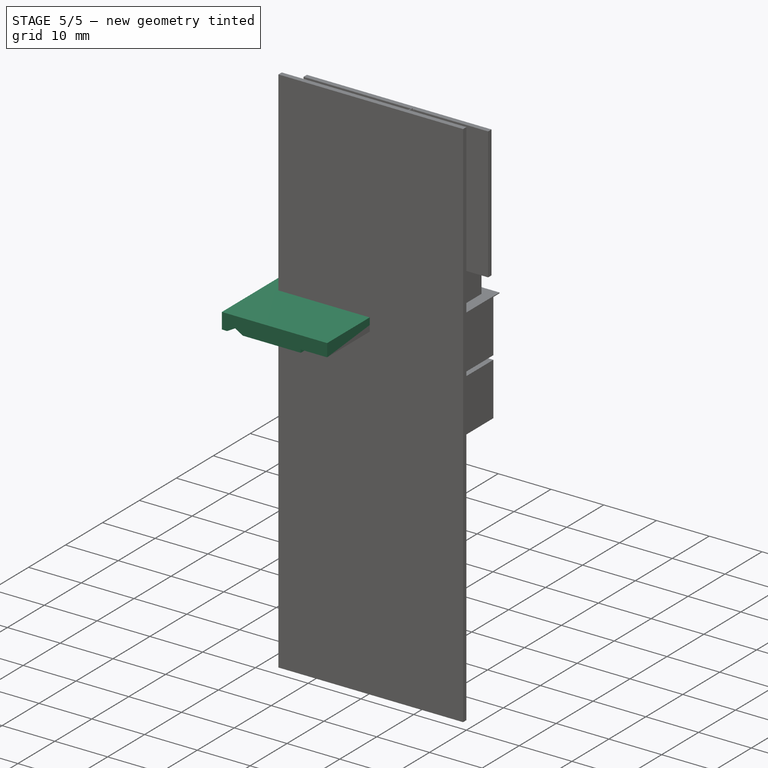
[diagram: stage 5 of 5 — iso view after this stage's code; geometry added in this stage tinted green]
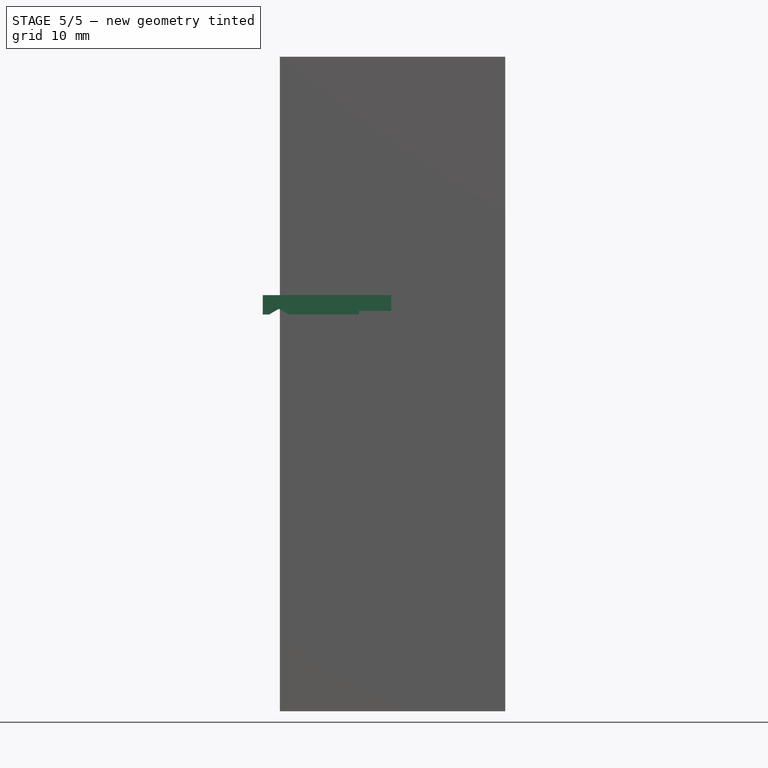
[diagram: stage 5 of 5 — front view after this stage's code; geometry added in this stage tinted green]
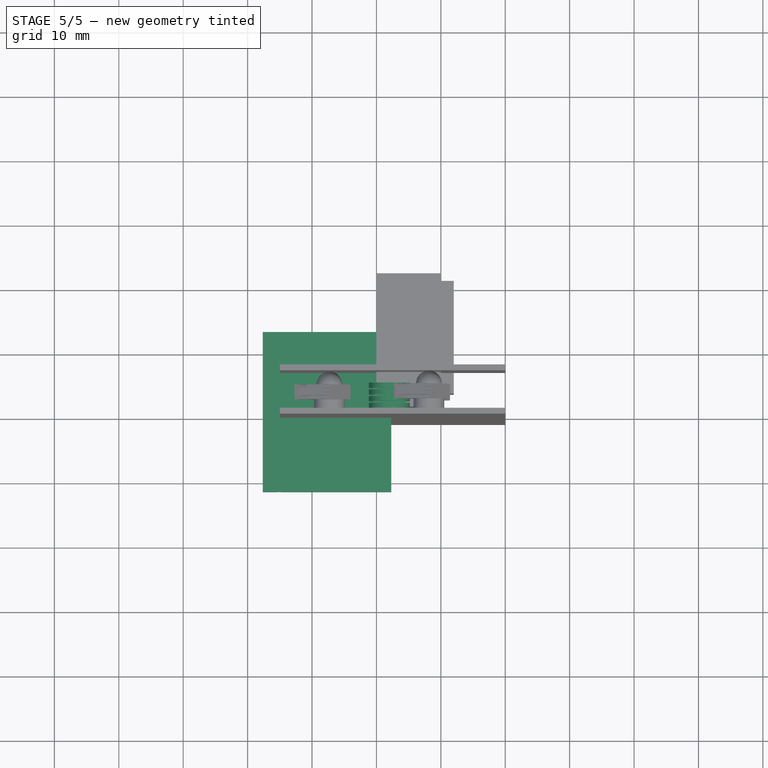
[diagram: stage 5 of 5 — top view after this stage's code; geometry added in this stage tinted green]
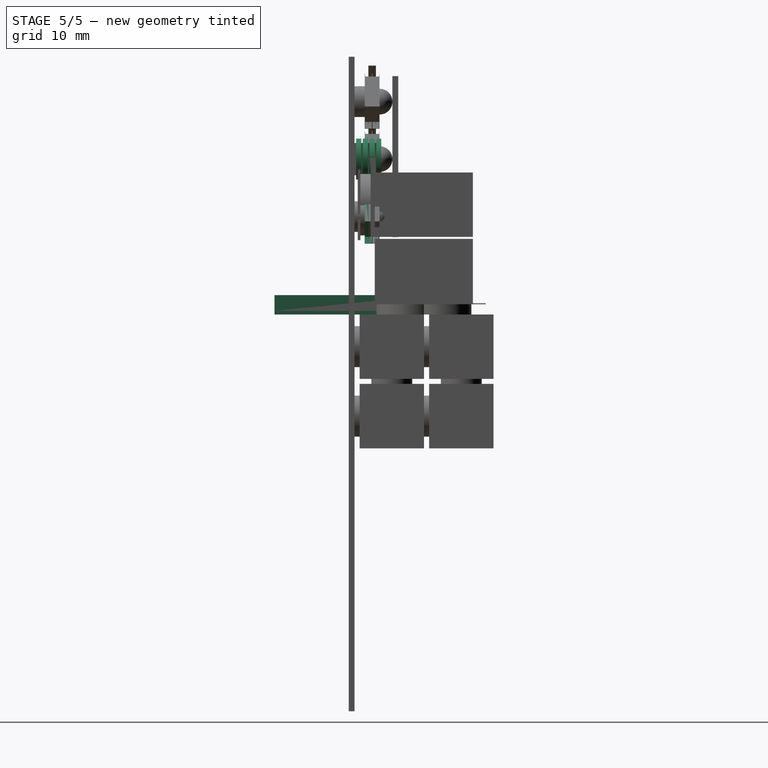
[diagram: stage 5 of 5 — right view after this stage's code; geometry added in this stage tinted green]
FEATURE [App::Point] Origin043  label="Origin050"
  Role = Origin
FEATURE [Sketcher::SketchObject] Sketch026
  ArcFitTolerance = 1e-06
  AttachmentSupport = -> [Origin042]
  ExternalTypes = [0]
  FullyConstrained = true
  MakeInternals = false
  MapMode = 5
  sketch-geometry (4):
    g0: LineSegment StartX=-7.65 StartY=-12.42 StartZ=0 EndX=-7.65 EndY=12.42 EndZ=0
    g1: LineSegment StartX=-7.65 StartY=12.42 StartZ=0 EndX=12.3 EndY=12.42 EndZ=0
    g2: LineSegment StartX=-7.65 StartY=-12.42 StartZ=0 EndX=12.3 EndY=-12.42 EndZ=0
    g3: LineSegment StartX=12.3 StartY=-12.42 StartZ=0 EndX=12.3 EndY=12.42 EndZ=0
  constraints (12):
    c: Vertical(g0)
    c: Coincident(g1,g0)
    c: Horizontal(g1)
    c: Coincident(g2,g0)
    c: Horizontal(g2)
    c: Coincident(g3,g2)
    c: Coincident(g3,g1)
    c: Vertical(g3)
    c: Distance(g-1,g1) = 12.42
    c: Distance(g-1,g2) = 12.42
    c: Distance(g-1,g0) = 7.65
    c: Distance(g-1,g3) = 12.3
FEATURE [PartDesign::Pad] Pad007
  Direction = (0,0,1)
  Length = 3
  Length2 = 10
  Profile = -> Sketch026
  ReferenceAxis = -> Sketch026 [N_Axis]
  Refine = true
  SideType = 0
  Suppressed = false
  Type = 0
  Type2 = 0
FEATURE [Sketcher::SketchObject] Sketch027
  ArcFitTolerance = 1e-06
  AttachmentSupport = -> [Origin042]
  ExternalTypes = [0]
  FullyConstrained = true
  MakeInternals = false
  MapMode = 5
  Placement = pos=(0,0,0) rot=(1,0,0;1.5708rad)
  sketch-geometry (3):
    g0: LineSegment StartX=-5.15 StartY=0.866025 StartZ=0 EndX=-6.65 EndY=0 EndZ=0
    g1: LineSegment StartX=-5.15 StartY=0.866025 StartZ=0 EndX=-3.65 EndY=0 EndZ=0
    g2: LineSegment StartX=-3.65 StartY=0 StartZ=0 EndX=-6.65 EndY=0 EndZ=0
  constraints (9):
    c: Coincident(g1,g0)
    c: Coincident(g2,g1)
    c: Coincident(g2,g0)
    c: PointOnObject(g1,g-1)
    c: PointOnObject(g0,g-1)
    c: Distance(g-1,g1) = 3.65
    c: Distance(g1,g0) = 3
    c: Equal(g0,g1)
    c: Angle(g0,g1) = 2.0944
FEATURE [PartDesign::Pocket] Pocket017
  BaseFeature = -> Pad007
  Direction = (0,1,-2e-16)
  Length = 5
  Length2 = 5
  Profile = -> Sketch027
  ReferenceAxis = -> Sketch027 [N_Axis]
  Refine = true
  SideType = 2
  Suppressed = false
  Type = 1
  Type2 = 0
FEATURE [Sketcher::SketchObject] Sketch028
  ArcFitTolerance = 1e-06
  AttachmentSupport = -> [Origin042]
  ExternalTypes = [0]
  FullyConstrained = true
  MakeInternals = false
  MapMode = 5
  Placement = pos=(0,0,0) rot=(1,0,0;1.5708rad)
  sketch-geometry (4):
    g0: LineSegment StartX=7.3 StartY=0.56 StartZ=0 EndX=7.3 EndY=0 EndZ=0
    g1: LineSegment StartX=7.3 StartY=0 StartZ=0 EndX=12.3 EndY=0 EndZ=0
    g2: LineSegment StartX=12.3 StartY=0 StartZ=0 EndX=12.3 EndY=0.56 EndZ=0
    g3: LineSegment StartX=12.3 StartY=0.56 StartZ=0 EndX=7.3 EndY=0.56 EndZ=0
  constraints (12):
    c: Coincident(g0,g1)
    c: Coincident(g1,g2)
    c: Coincident(g2,g3)
    c: Coincident(g3,g0)
    c: Vertical(g0)
    c: Vertical(g2)
    c: Horizontal(g1)
    c: Horizontal(g3)
    c: Distance(g-1,g0) = 7.3
    c: DistanceX(g3,g3) = 5
    c: PointOnObject(g0,g-1)
    c: DistanceY(g0,g0) = 0.56
FEATURE [PartDesign::Pocket] Pocket018
  BaseFeature = -> Pocket017
  Direction = (0,1,-2e-16)
  Length = 5
  Length2 = 5
  Profile = -> Sketch028
  ReferenceAxis = -> Sketch028 [N_Axis]
  Refine = true
  SideType = 2
  Suppressed = false
  Type = 1
  Type2 = 0
FEATURE [PartDesign::Body] Body008  label="Coarse Z Slider (Phase I)"
  AllowCompound = false
  Group = -> [Sketch026,Pad007,Sketch027,Pocket017,Sketch028,Pocket018]
  Origin = -> Origin042
  Placement = pos=(13,5.33,24.12) rot=(0,0.707107,0.707107;3.14159rad)
  Tip = -> Pocket018
FEATURE [Part::Box] Box248  label="Steel Shim Spacer016"
  AttacherType = Attacher::AttachEngine3D
  Height = 0.25
  Length = 5
  Placement = pos=(14.5,5.3e-15,21.62) rot=(0,0.707107,0.707107;3.14159rad)
  Width = 5
FEATURE [Part::Box] Box249  label="Steel Shim Spacer017"
  AttacherType = Attacher::AttachEngine3D
  Height = 0.25
  Length = 5
  Placement = pos=(14.5,1.04,21.62) rot=(0,0.707107,0.707107;3.14159rad)
  Width = 5
FEATURE [Part::Box] Box250  label="Steel Shim Spacer018"
  AttacherType = Attacher::AttachEngine3D
  Height = 0.25
  Length = 5
  Placement = pos=(14.5,2.08,21.62) rot=(0,0.707107,0.707107;3.14159rad)
  Width = 5
FEATURE [Part::Box] Box251  label="Steel Shim Spacer019"
  AttacherType = Attacher::AttachEngine3D
  Height = 0.25
  Length = 5
  Placement = pos=(14.5,3.12,21.62) rot=(0,0.707107,0.707107;3.14159rad)
  Width = 5
FEATURE [Part::Box] Box252  label="Small LiNbO3 Plate124"
  AttacherType = Attacher::AttachEngine3D
  Height = 0.5
  Length = 4.5
  Width = 5.5
FEATURE [Part::Box] Box253  label="Small Cu GND Electrode105"
  AttacherType = Attacher::AttachEngine3D
  Height = 1.15
  Length = 6
  Width = 6.5
FEATURE [Part::Box] Box254  label="Small Cu GND Electrode106"
  AttacherType = Attacher::AttachEngine3D
  Height = 1.05
  Length = 6
  Placement = pos=(0,0,0.05) rot=(0,0,1;0rad)
  Width = 6.45
FEATURE [Part::Box] Box255  label="Small LiNbO3 Plate125"
  AttacherType = Attacher::AttachEngine3D
  Height = 0.5
  Length = 4.5
  Width = 5.5
FEATURE [Part::Box] Box256  label="Small Cu GND Electrode107"
  AttacherType = Attacher::AttachEngine3D
  Height = 1.2
  Length = 5
  Width = 7.5
FEATURE [Part::Box] Box257  label="Small Cu GND Electrode108"
  AttacherType = Attacher::AttachEngine3D
  Height = 1.1
  Length = 5
  Placement = pos=(0,0,0.05) rot=(0,0,1;0rad)
  Width = 7.45
FEATURE [Part::Box] Box258  label="Small Cu GND Electrode109"
  AttacherType = Attacher::AttachEngine3D
  Height = 1.15
  Length = 6
  Width = 6.5
FEATURE [Part::Box] Box259  label="Small Cu GND Electrode110"
  AttacherType = Attacher::AttachEngine3D
  Height = 1.05
  Length = 6
  Placement = pos=(0,0,0.05) rot=(0,0,1;0rad)
  Width = 6.45
FEATURE [Part::Cut] Cut132  label="Small Cu Electrode, Short Axis, GND014"
  Base = -> Box253
  Placement = pos=(18.25,1.59,19.5311) rot=(-0.787007,0.436245,0.436245;1.80806rad)
  Refine = true
  Tool = -> Box254
FEATURE [Part::Cut] Cut134  label="Small Cu Electrode001, Long Axis, V014"
  Base = -> Box256
  Placement = pos=(21.4296,2.14,14.4429) rot=(0.198716,-0.693005,-0.693005;3.53391rad)
  Refine = true
  Tool = -> Box257
FEATURE [Part::Cut] Cut135  label="Small Cu Electrode002, Short Axis, GND014"
  Base = -> Box258
  Placement = pos=(18.25,2.74,19.5311) rot=(-0.787007,0.436245,0.436245;1.80806rad)
  Refine = true
  Tool = -> Box259
FEATURE [Part::Cylinder] Cylinder114  label="KJ_D401_017"
  Angle = 360
  AttacherType = Attacher::AttachEngine3D
  FirstAngle = 0
  Height = 0.79
  Placement = pos=(12,0.25,24.12) rot=(0,0.707107,0.707107;3.14159rad)
  Radius = 3.18
  SecondAngle = 0
FEATURE [Part::Cylinder] Cylinder115  label="KJ_D401_018"
  Angle = 360
  AttacherType = Attacher::AttachEngine3D
  FirstAngle = 0
  Height = 0.79
  Placement = pos=(12,1.29,24.12) rot=(0,0.707107,0.707107;3.14159rad)
  Radius = 3.18
  SecondAngle = 0
FEATURE [Part::Cylinder] Cylinder116  label="KJ_D401_019"
  Angle = 360
  AttacherType = Attacher::AttachEngine3D
  FirstAngle = 0
  Height = 0.79
  Placement = pos=(12,2.33,24.12) rot=(0,0.707107,0.707107;3.14159rad)
  Radius = 3.18
  SecondAngle = 0
FEATURE [Part::Cylinder] Cylinder117  label="KJ_D401_020"
  Angle = 360
  AttacherType = Attacher::AttachEngine3D
  FirstAngle = 0
  Height = 0.79
  Placement = pos=(12,3.37,24.12) rot=(0,0.707107,0.707107;3.14159rad)
  Radius = 3.18
  SecondAngle = 0
FEATURE [Part::Cut] Cut131  label="Small LiNbO3 Plate136"
  Base = -> Box252
  Placement = pos=(21.4296,1.64,14.4429) rot=(0.198716,-0.693005,-0.693005;3.53391rad)
  Refine = true
  Tool = -> Cylinder119
FEATURE [Part::Cut] Cut133  label="Small LiNbO3 Plate137"
  Base = -> Box255
  Placement = pos=(14.6988,2.19,16.7225) rot=(-0.926703,-0.265728,-0.265728;1.64685rad)
  Refine = true
  Tool = -> Cylinder120
FEATURE [Part::Cut] Cut136  label="Small LiNbO3 Plate138"
  Base = -> Box260
  Placement = pos=(21.4296,2.79,14.4429) rot=(0.198716,-0.693005,-0.693005;3.53391rad)
  Refine = true
  Tool = -> Cylinder121
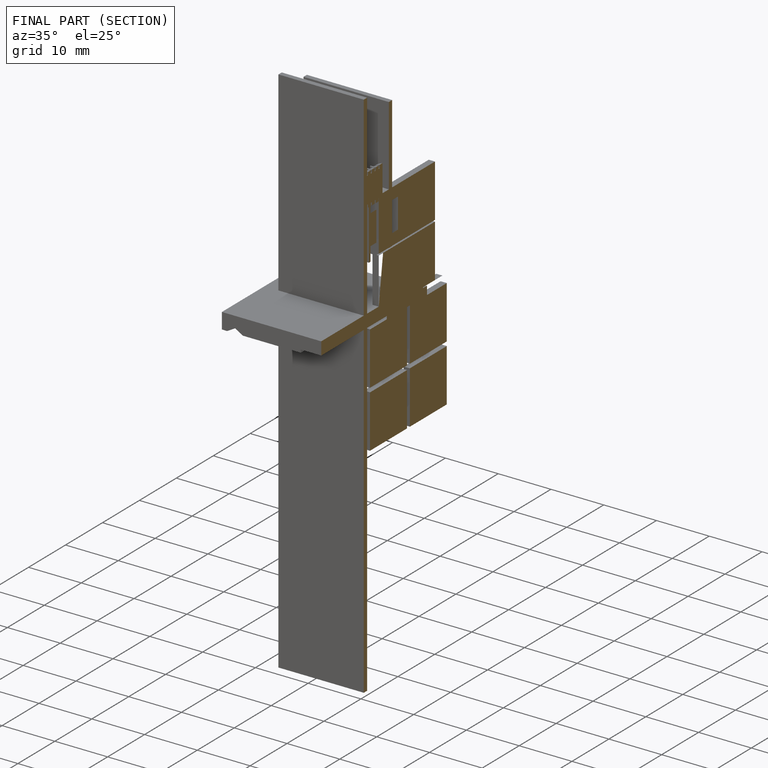
[diagram: finished part — half-section view (interior)]
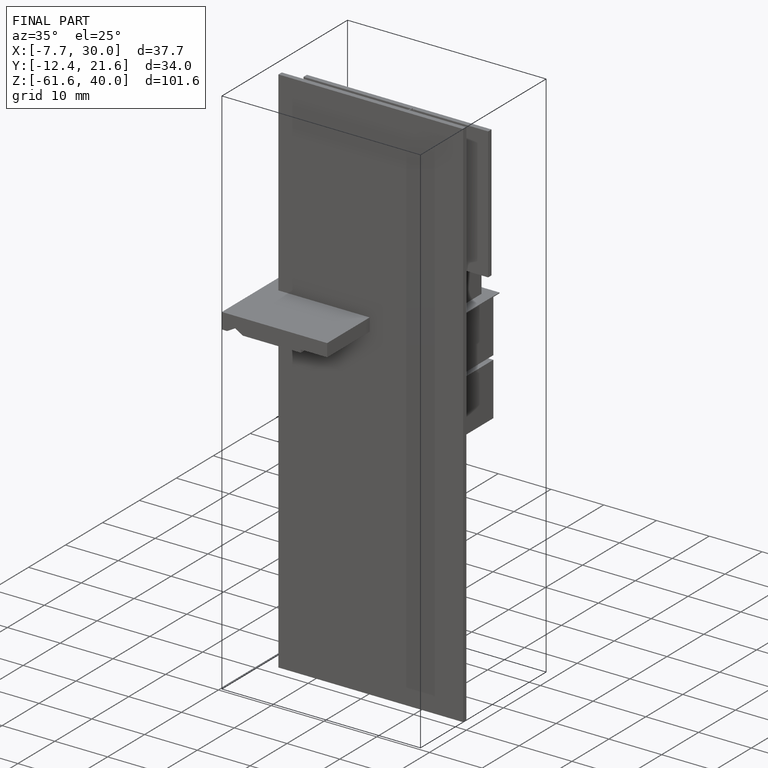
[diagram: finished part — iso view with bounding-box wireframe]
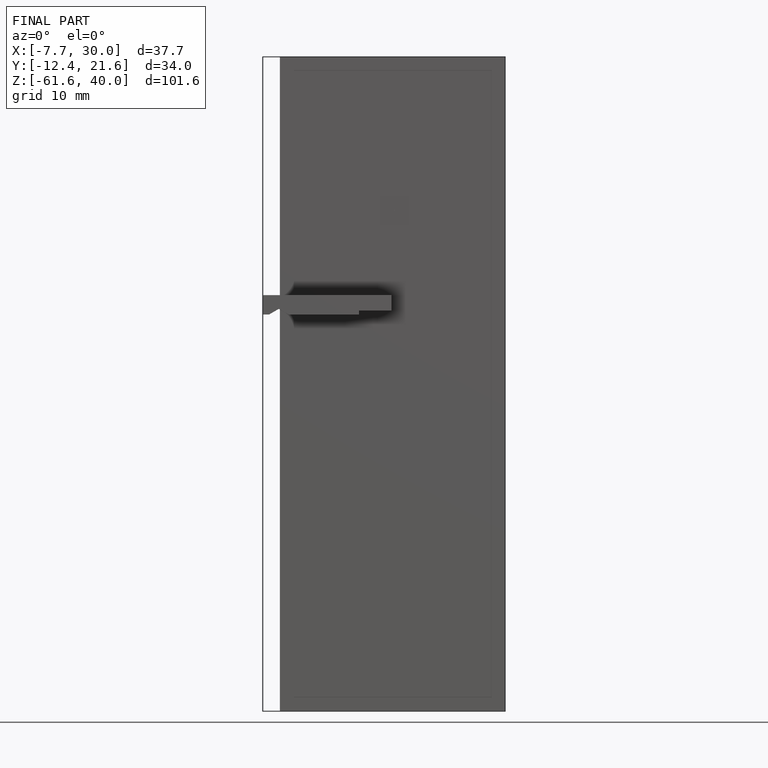
[diagram: finished part — front view with bounding-box wireframe]
